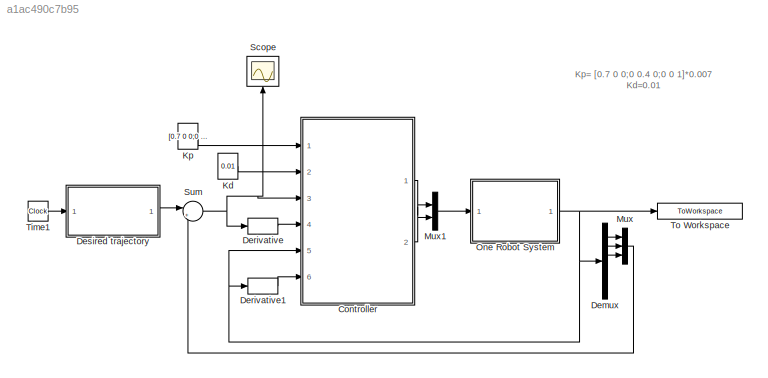
MODEL slx_a1ac490c7b95
KIND model
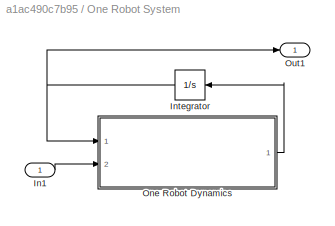
BLOCK [SubSystem]  One Robot System
  Ports = [1, 1]
  RequestExecContextInheritance = off
BLOCK [Inport]  One Robot System/In1
  IconDisplay = Port number
BLOCK [Integrator]  One Robot System/Integrator
  InitialCondition = [.2136; 0.7015\n;pi/3;0;0;0]
  LimitOutput = on
  LowerSaturationLimit = [-inf,-inf,-inf,-0.4,-0.4,-0.5]
  Ports = [1, 1]
  UpperSaturationLimit = [inf,inf,inf,0.4,0.4,0.5]
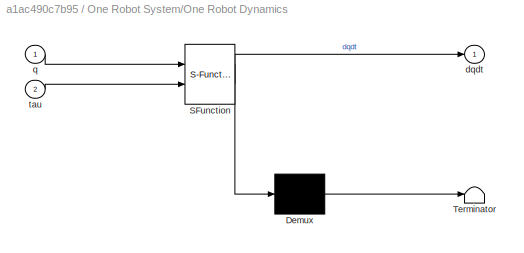
BLOCK [SubSystem]  One Robot System/One Robot Dynamics
  ErrorFcn = Stateflow.Translate.translate
  PermitHierarchicalResolution = ExplicitOnly
  Ports = [2, 1]
  RequestExecContextInheritance = off
  SFBlockType = MATLAB Function
  TreatAsAtomicUnit = on
BLOCK [Demux]  One Robot System/One Robot Dynamics/ Demux 
  Outputs = 1
  Ports = [1, 1]
BLOCK [S-Function]  One Robot System/One Robot Dynamics/ SFunction 
  EnableBusSupport = on
  FunctionName = sf_sfun
  PortCounts = [2 2]
  Ports = [2, 2]
  Tag = Stateflow S-Function OneRobot_feedback 2
BLOCK [Terminator]  One Robot System/One Robot Dynamics/ Terminator 
BLOCK [Outport]  One Robot System/One Robot Dynamics/dqdt
  IconDisplay = Port number
BLOCK [Inport]  One Robot System/One Robot Dynamics/q
  IconDisplay = Port number
BLOCK [Inport]  One Robot System/One Robot Dynamics/tau
  IconDisplay = Port number
  Port = 2
BLOCK [Outport]  One Robot System/Out1
  IconDisplay = Port number
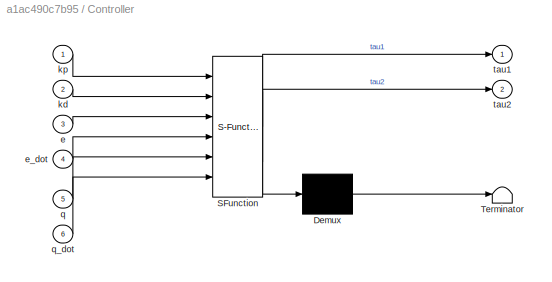
BLOCK [SubSystem] Controller 
  ErrorFcn = Stateflow.Translate.translate
  PermitHierarchicalResolution = ExplicitOnly
  Ports = [6, 2]
  RequestExecContextInheritance = off
  SFBlockType = MATLAB Function
  TreatAsAtomicUnit = on
BLOCK [Demux] Controller / Demux 
  Outputs = 1
  Ports = [1, 1]
BLOCK [S-Function] Controller / SFunction 
  EnableBusSupport = on
  FunctionName = sf_sfun
  PortCounts = [6 3]
  Ports = [6, 3]
  Tag = Stateflow S-Function OneRobot_feedback 3
BLOCK [Terminator] Controller / Terminator 
BLOCK [Inport] Controller /e
  IconDisplay = Port number
  Port = 3
BLOCK [Inport] Controller /e_dot
  IconDisplay = Port number
  Port = 4
BLOCK [Inport] Controller /kd
  IconDisplay = Port number
  Port = 2
BLOCK [Inport] Controller /kp
  IconDisplay = Port number
BLOCK [Inport] Controller /q
  IconDisplay = Port number
  Port = 5
BLOCK [Inport] Controller /q_dot
  IconDisplay = Port number
  Port = 6
BLOCK [Outport] Controller /tau1
  IconDisplay = Port number
BLOCK [Outport] Controller /tau2
  IconDisplay = Port number
  Port = 2
BLOCK [Demux] Demux
  DisplayOption = bar
  Outputs = 6
  Ports = [1, 6]
BLOCK [Derivative] Derivative
BLOCK [Derivative] Derivative1
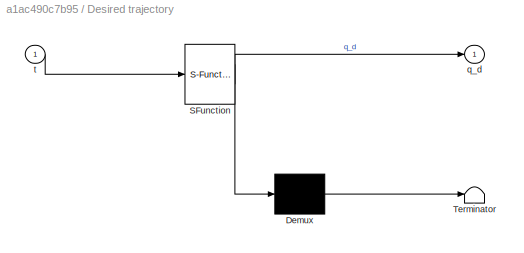
BLOCK [SubSystem] Desired trajectory
  ErrorFcn = Stateflow.Translate.translate
  PermitHierarchicalResolution = ExplicitOnly
  Ports = [1, 1]
  RequestExecContextInheritance = off
  SFBlockType = MATLAB Function
  TreatAsAtomicUnit = on
BLOCK [Demux] Desired trajectory/ Demux 
  Outputs = 1
  Ports = [1, 1]
BLOCK [S-Function] Desired trajectory/ SFunction 
  EnableBusSupport = on
  FunctionName = sf_sfun
  PortCounts = [1 2]
  Ports = [1, 2]
  Tag = Stateflow S-Function OneRobot_feedback 1
BLOCK [Terminator] Desired trajectory/ Terminator 
BLOCK [Outport] Desired trajectory/q_d
  IconDisplay = Port number
BLOCK [Inport] Desired trajectory/t
  IconDisplay = Port number
BLOCK [Constant] Kd
  Value = 0.01
BLOCK [Constant] Kp
  Value = [0.7 0 0;0 0.4 0;0 0 1]*0.0078
BLOCK [Mux] Mux
  DisplayOption = bar
  Inputs = 3
  Ports = [3, 1]
BLOCK [Mux] Mux1
  DisplayOption = bar
  Inputs = 2
  Ports = [2, 1]
BLOCK [Scope] Scope
  Floating = off
  NumInputPorts = 1
  Ports = [1]
  ShowLegends = off
  ZoomMode = yonly
BLOCK [Sum] Sum
  IconShape = round
  InputSameDT = off
  Inputs = |+-
  OutDataTypeStr = Inherit: Inherit via internal rule
  Ports = [2, 1]
  SaturateOnIntegerOverflow = off
BLOCK [Clock] Time1
BLOCK [ToWorkspace] To Workspace
  FixptAsFi = on
  MaxDataPoints = inf
  Ports = [1]
  SampleTime = -1
  VariableName = q_oufromSIM
ANNOTATION (root): Kp= [0.7 0 0;0 0.4 0;0 0 1]*0.007 Kd=0.01
LINE  One Robot System/In1:1 ->  One Robot System/One Robot Dynamics:2
NET  One Robot System/Integrator:1 ->  One Robot System/One Robot Dynamics:1,  One Robot System/Out1:1
LINE  One Robot System/One Robot Dynamics:1 ->  One Robot System/Integrator:1
NET  One Robot System:1 -> Controller :5, Demux:1, Derivative1:1, To Workspace:1
LINE Controller :1 -> Mux1:1
LINE Controller :2 -> Mux1:2
LINE Demux:1 -> Mux:1
LINE Demux:2 -> Mux:2
LINE Demux:3 -> Mux:3
LINE Derivative1:1 -> Controller :6
LINE Derivative:1 -> Controller :4
LINE Desired trajectory:1 -> Sum:1
LINE Kd:1 -> Controller :2
LINE Kp:1 -> Controller :1
LINE Mux1:1 ->  One Robot System:1
LINE Mux:1 -> Sum:2
NET Sum:1 -> Controller :3, Derivative:1, Scope:1
LINE Time1:1 -> Desired trajectory:1
note: NET lines group one-source signal fan-out (src -> all destinations, sorted); 1:1 wires keep LINE
CHART Desired trajectory states=1 transitions=1
  STATE_LABEL 'eML_blk_kernel()'
  STATE_LABEL 'SCRIPT:\nfunction q_d = fcn(t)\n\nq_d = q_desired(t);'
CHART  One Robot System/One Robot Dynamics states=1 transitions=1
  STATE_LABEL 'eML_blk_kernel()'
  STATE_LABEL 'SCRIPT:\nfunction dqdt= Robot_ode(q,tau)\ndqdt=zeros(6,1);\n% global tau_l tau_r; \ntau_l=tau(1);\ntau_r=tau(2);\n\nx_dot=q(4);\ny_dot=q(5);\ntheta=q(3);\ntheta_dot=q(6);\nq_dotdot = Qdotdot(tau_l,tau_r,theta,theta_dot,x_dot,y_dot);\n\ndqdt(1)=q(4);\ndqdt(2)=q(5);\ndqdt(3)=q(6);\ndqdt(4)=(q_dotdot(1));\ndqdt(5)=(q_dotdot(2));\ndqdt(6)=(q_dotdot(3));\n'
CHART Controller 
 states=1 transitions=1
  STATE_LABEL 'eML_blk_kernel()'
  STATE_LABEL 'SCRIPT:\nfunction [tau1,tau2]= controller(kp,kd,e,e_dot,q,q_dot)\n\ntheta=q(3);\ntheta_dot=q(6);\nx_dotdot=q_dot(4);\ny_dotdot=q_dot(5);\ntheta_dotdot=q_dot(6);\nx_dot=q(4);\ny_dot=q(5);\n\n\nB_inv=B_inverse(theta);\ntau_compued = Tau_compued(theta,theta_dot,theta_dotdot,x_dot,x_dotdot,y_dot,y_dotdot) +B_inv*(kp*e+kd*e_dot) ;\n\ntau1=tau_compued(1);\ntau2=tau_compued(2);\n\n\n'
